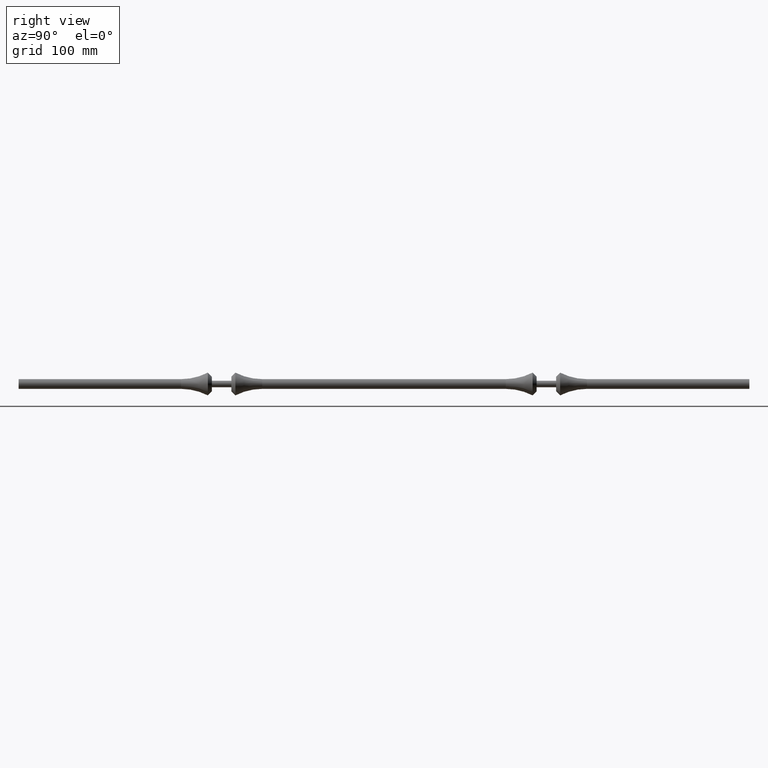
[diagram: clean part render]
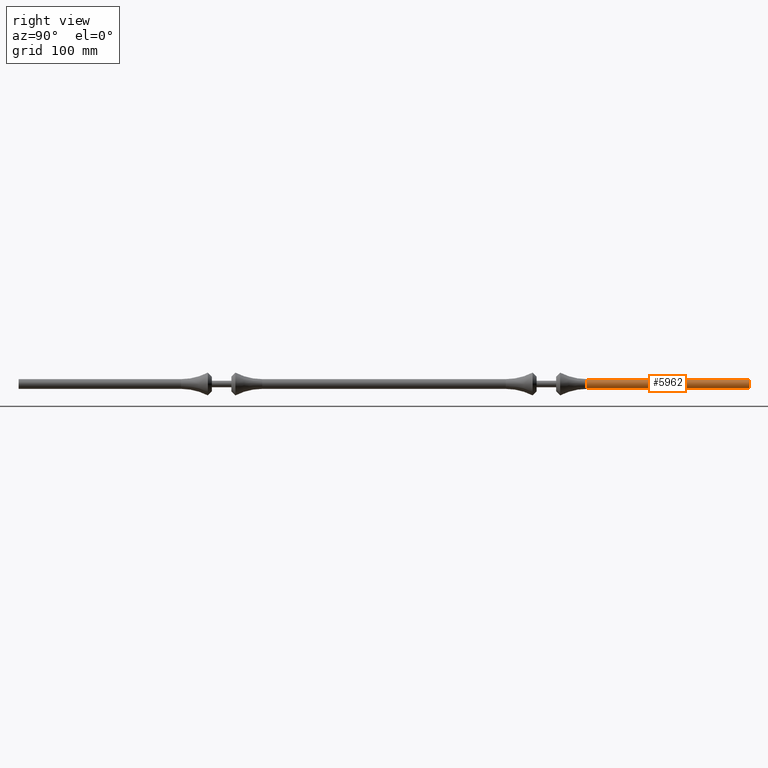
[diagram: same view with one face highlighted and labeled with its STEP entity id]
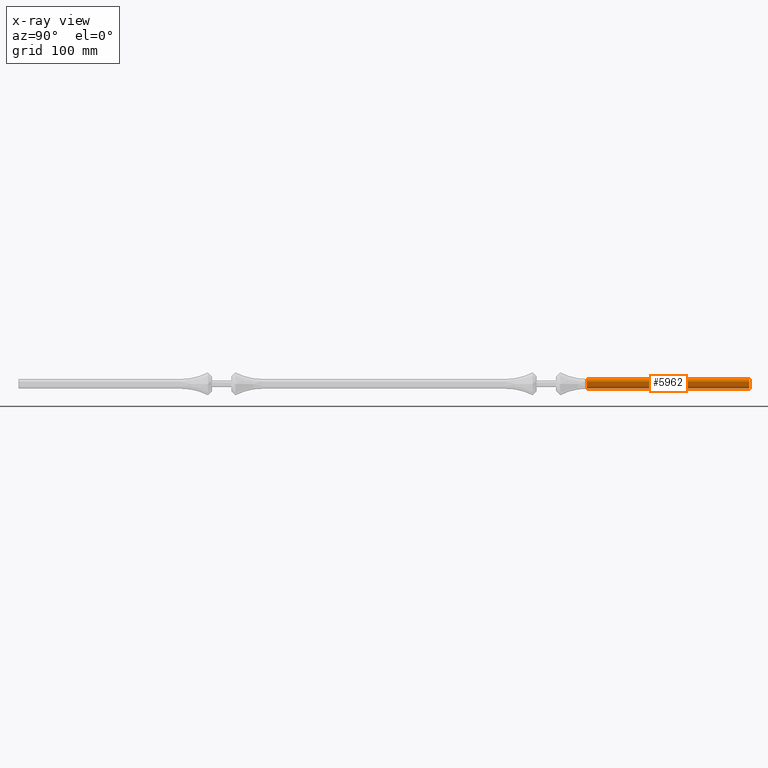
[diagram: x-ray of the same camera — body ghosted, the highlighted face saturated]
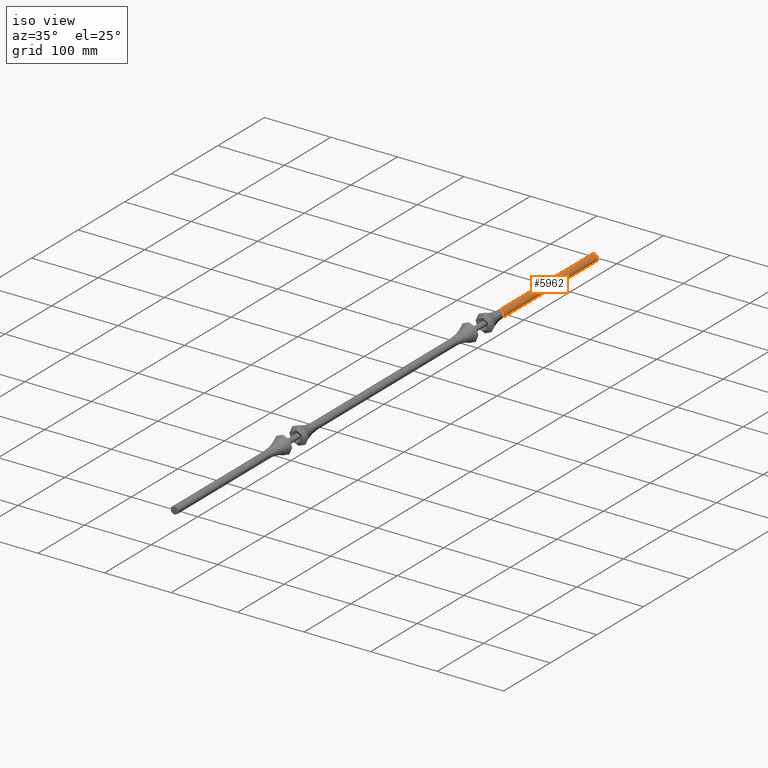
[diagram: same view with one face highlighted and labeled with its STEP entity id]
A machine part, right view. The second image highlights one B-rep face of the part: STEP entity #5962.
The next image is the same camera in x-ray: the body ghosted, the highlighted face saturated — about 0% of this face is hidden behind the body in this view.
A second angle (iso view) of the same face is appended — the face is thin or edge-on in the first view.
In plain terms, the highlighted cylindrical surface (edge-blend (fillet) strip) has radius 6 mm, axis along (-0, -1, -0).
Its self-contained STEP definition (entity closure, byte-faithful):
#1077 = DIRECTION ( 'NONE',  ( -0.000000000000000000, -1.000000000000000000, -0.000000000000000000 ) ) ;
#1084 = EDGE_CURVE ( 'NONE', #9427, #5761, #7919, .T. ) ;
#1836 = CIRCLE ( 'NONE', #9851, 6.000000000000000000 ) ;
#1938 = DIRECTION ( 'NONE',  ( 0.000000000000000000, 0.000000000000000000, -1.000000000000000000 ) ) ;
#2093 = VECTOR ( 'NONE', #15985, 1000.000000000000000 ) ;
#2127 = CARTESIAN_POINT ( 'NONE',  ( 0.000000000000000000, 0.000000000000000000, 0.000000000000000000 ) ) ;
#2334 = AXIS2_PLACEMENT_3D ( 'NONE', #2127, #3372, #12779 ) ;
#2605 = CARTESIAN_POINT ( 'NONE',  ( 0.000000000000000000, 0.000000000000000000, 0.000000000000000000 ) ) ;
#3372 = DIRECTION ( 'NONE',  ( -0.000000000000000000, -1.000000000000000000, -0.000000000000000000 ) ) ;
#4798 = VECTOR ( 'NONE', #10598, 1000.000000000000000 ) ;
#4909 = DIRECTION ( 'NONE',  ( -0.000000000000000000, -1.000000000000000000, -0.000000000000000000 ) ) ;
#4979 = CARTESIAN_POINT ( 'NONE',  ( 0.000000000000000000, 200.0000000000000000, 0.000000000000000000 ) ) ;
#5088 = ORIENTED_EDGE ( 'NONE', *, *, #16525, .F. ) ;
#5356 = EDGE_CURVE ( 'NONE', #6187, #9427, #10924, .T. ) ;
#5577 = EDGE_LOOP ( 'NONE', ( #11575, #13019, #10828, #5088 ) ) ;
#5579 = DIRECTION ( 'NONE',  ( 0.000000000000000000, 0.000000000000000000, -1.000000000000000000 ) ) ;
#5761 = VERTEX_POINT ( 'NONE', #15419 ) ;
#5962 = ADVANCED_FACE ( 'NONE', ( #13330 ), #18362, .T. ) ;
#6187 = VERTEX_POINT ( 'NONE', #15066 ) ;
#7036 = CARTESIAN_POINT ( 'NONE',  ( 0.000000000000000000, 0.000000000000000000, -6.000000000000000000 ) ) ;
#7919 = LINE ( 'NONE', #15323, #4798 ) ;
#8331 = CARTESIAN_POINT ( 'NONE',  ( 0.000000000000000000, 0.000000000000000000, -6.000000000000000000 ) ) ;
#9427 = VERTEX_POINT ( 'NONE', #18795 ) ;
#9851 = AXIS2_PLACEMENT_3D ( 'NONE', #2605, #1077, #5579 ) ;
#10598 = DIRECTION ( 'NONE',  ( -0.000000000000000000, -1.000000000000000000, -0.000000000000000000 ) ) ;
#10828 = ORIENTED_EDGE ( 'NONE', *, *, #11120, .F. ) ;
#10924 = CIRCLE ( 'NONE', #19728, 6.000000000000000000 ) ;
#11120 = EDGE_CURVE ( 'NONE', #12287, #5761, #1836, .T. ) ;
#11575 = ORIENTED_EDGE ( 'NONE', *, *, #5356, .T. ) ;
#12287 = VERTEX_POINT ( 'NONE', #7036 ) ;
#12779 = DIRECTION ( 'NONE',  ( 0.000000000000000000, 0.000000000000000000, -1.000000000000000000 ) ) ;
#13019 = ORIENTED_EDGE ( 'NONE', *, *, #1084, .T. ) ;
#13330 = FACE_OUTER_BOUND ( 'NONE', #5577, .T. ) ;
#15066 = CARTESIAN_POINT ( 'NONE',  ( 0.000000000000000000, 200.0000000000000000, -6.000000000000000000 ) ) ;
#15323 = CARTESIAN_POINT ( 'NONE',  ( 7.347880794884119736E-16, 0.000000000000000000, 6.000000000000000000 ) ) ;
#15419 = CARTESIAN_POINT ( 'NONE',  ( 7.347880794884119736E-16, 0.000000000000000000, 6.000000000000000000 ) ) ;
#15985 = DIRECTION ( 'NONE',  ( -0.000000000000000000, -1.000000000000000000, -0.000000000000000000 ) ) ;
#16525 = EDGE_CURVE ( 'NONE', #6187, #12287, #17391, .T. ) ;
#17391 = LINE ( 'NONE', #8331, #2093 ) ;
#18362 = CYLINDRICAL_SURFACE ( 'NONE', #2334, 6.000000000000000000 ) ;
#18795 = CARTESIAN_POINT ( 'NONE',  ( 7.347880794884119736E-16, 200.0000000000000000, 6.000000000000000000 ) ) ;
#19728 = AXIS2_PLACEMENT_3D ( 'NONE', #4979, #4909, #1938 ) ;